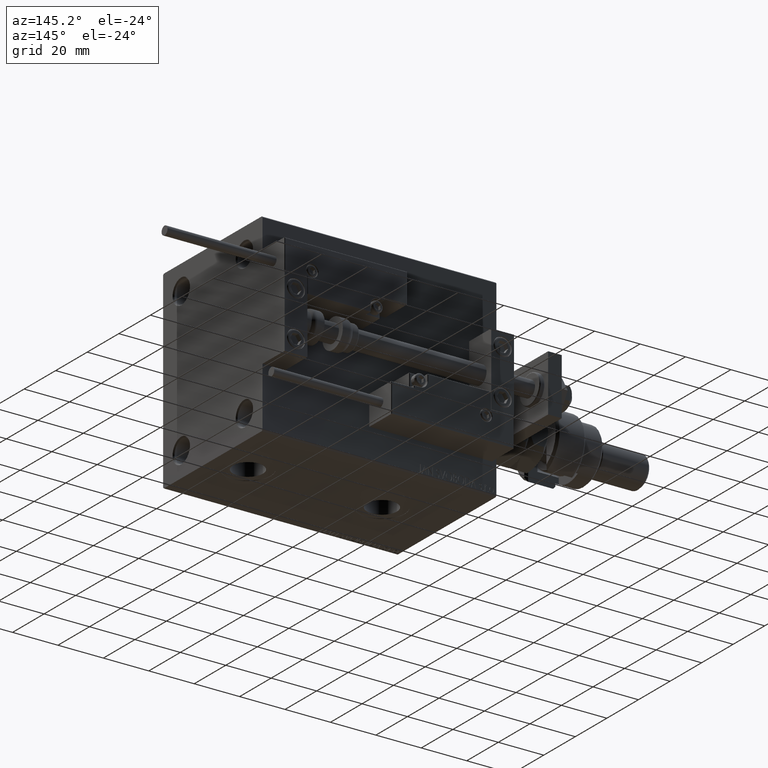
[diagram: clean part render]
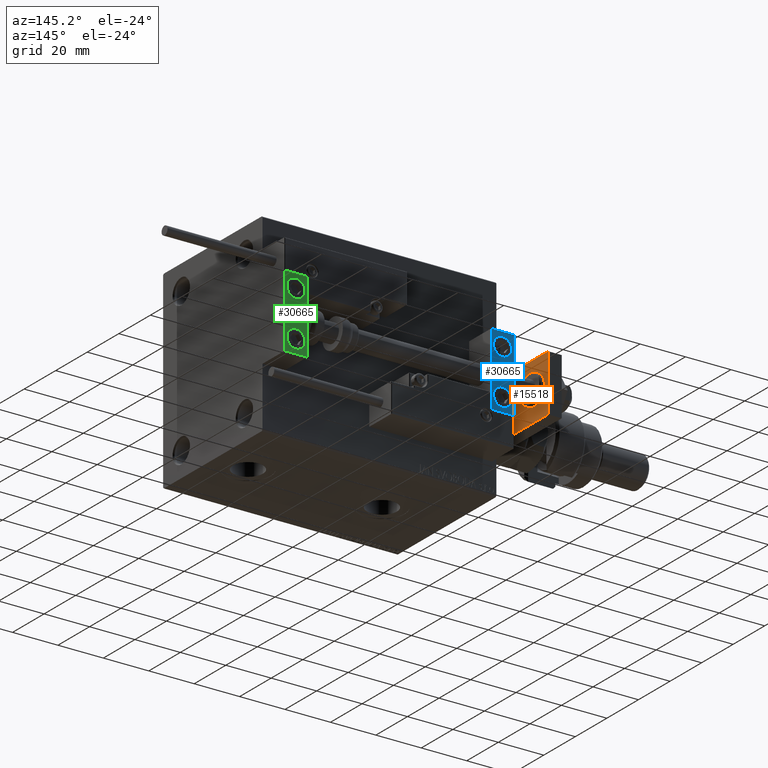
[diagram: same view with three faces highlighted in distinct colors, each labeled with its STEP entity id]
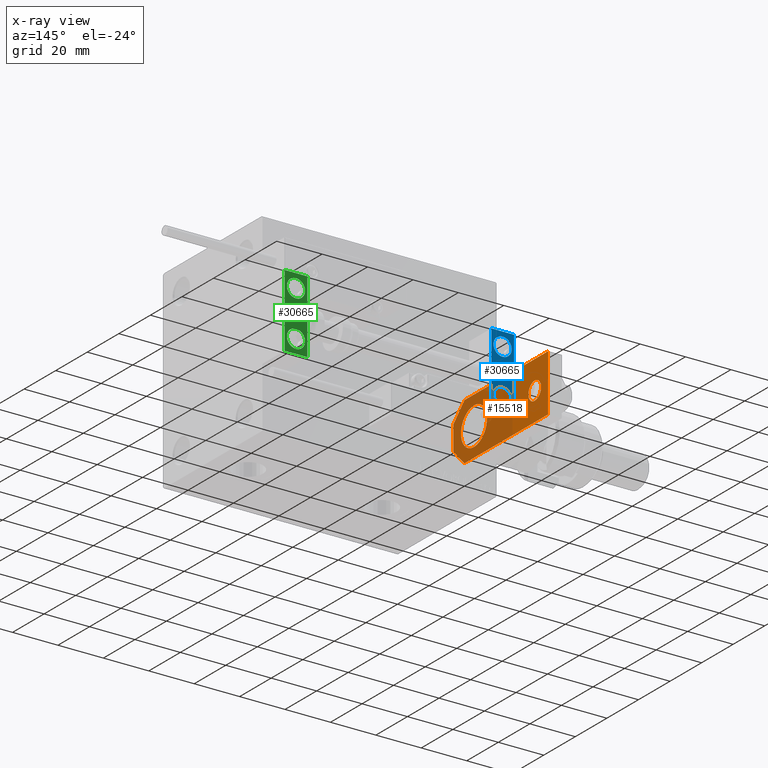
[diagram: x-ray of the same camera — body ghosted, the three highlighted faces saturated]
A machine part, auxiliary view with three faces highlighted in distinct colors.
The next image is the same camera in x-ray (body ghosted, the three faces saturated) — at least one of them is partly hidden behind the body in this view.
Their STEP definitions:

[orange] entity #15518 — the highlighted planar face has unit normal (-1, -0, 0).
#773 = LINE ( 'NONE', #17855, #52825 ) ;
#1029 = EDGE_CURVE ( 'NONE', #21975, #17880, #34974, .T. ) ;
#4438 = VERTEX_POINT ( 'NONE', #30233 ) ;
#4826 = CARTESIAN_POINT ( 'NONE',  ( 4.000000000000000888, 51.50000000000000000, 0.000000000000000000 ) ) ;
#5213 = LINE ( 'NONE', #14439, #53873 ) ;
#5479 = VERTEX_POINT ( 'NONE', #4826 ) ;
#5486 = DIRECTION ( 'NONE',  ( 1.000000000000000000, 0.000000000000000000, 0.000000000000000000 ) ) ;
#5606 = CARTESIAN_POINT ( 'NONE',  ( -5.500000000000010658, 4.814824860968089633E-32, 0.000000000000000000 ) ) ;
#5746 = EDGE_CURVE ( 'NONE', #5479, #14734, #54352, .T. ) ;
#5845 = CARTESIAN_POINT ( 'NONE',  ( 12.50000000000000355, 60.00000000000000000, 0.000000000000000000 ) ) ;
#7175 = CARTESIAN_POINT ( 'NONE',  ( -1.432611055310774642E-16, 51.50000000000000000, 0.000000000000000000 ) ) ;
#7712 = VERTEX_POINT ( 'NONE', #29276 ) ;
#10633 = LINE ( 'NONE', #5606, #36759 ) ;
#10963 = VERTEX_POINT ( 'NONE', #42256 ) ;
#12043 = DIRECTION ( 'NONE',  ( 1.000000000000000000, 0.000000000000000000, 0.000000000000000000 ) ) ;
#12645 = VERTEX_POINT ( 'NONE', #19685 ) ;
#13694 = CARTESIAN_POINT ( 'NONE',  ( 12.50000000000000355, 60.00000000000000000, 0.000000000000000000 ) ) ;
#13887 = EDGE_LOOP ( 'NONE', ( #41585, #16763 ) ) ;
#13919 = VECTOR ( 'NONE', #42817, 1000.000000000000000 ) ;
#14439 = CARTESIAN_POINT ( 'NONE',  ( -12.50000000000000355, 4.814824860968089633E-32, 0.000000000000000000 ) ) ;
#14734 = VERTEX_POINT ( 'NONE', #50849 ) ;
#15518 = ADVANCED_FACE ( 'NONE', ( #33870, #37788, #50658 ), #46193, .F. ) ;
#16469 = LINE ( 'NONE', #33829, #40222 ) ;
#16763 = ORIENTED_EDGE ( 'NONE', *, *, #48590, .T. ) ;
#17855 = CARTESIAN_POINT ( 'NONE',  ( 12.50000000000000355, 7.000000000000006217, 0.000000000000000000 ) ) ;
#17880 = VERTEX_POINT ( 'NONE', #24307 ) ;
#17935 = EDGE_CURVE ( 'NONE', #17880, #4438, #16469, .T. ) ;
#18314 = VECTOR ( 'NONE', #54628, 1000.000000000000000 ) ;
#18402 = DIRECTION ( 'NONE',  ( -0.7071067811865486830, -0.7071067811865464625, -0.000000000000000000 ) ) ;
#18432 = ORIENTED_EDGE ( 'NONE', *, *, #1029, .F. ) ;
#19350 = LINE ( 'NONE', #20174, #18314 ) ;
#19487 = EDGE_CURVE ( 'NONE', #7712, #4438, #10633, .T. ) ;
#19685 = CARTESIAN_POINT ( 'NONE',  ( -8.250000000000000000, 12.99999999999999822, 0.000000000000000000 ) ) ;
#20174 = CARTESIAN_POINT ( 'NONE',  ( 12.50000000000000355, 4.814824860968089633E-32, 0.000000000000000000 ) ) ;
#20419 = DIRECTION ( 'NONE',  ( 1.000000000000000000, 0.000000000000000000, 0.000000000000000000 ) ) ;
#20732 = EDGE_CURVE ( 'NONE', #12645, #10963, #38591, .T. ) ;
#20864 = DIRECTION ( 'NONE',  ( 0.000000000000000000, 0.000000000000000000, 1.000000000000000000 ) ) ;
#21975 = VERTEX_POINT ( 'NONE', #5845 ) ;
#23817 = CARTESIAN_POINT ( 'NONE',  ( -1.432611055310774642E-16, 51.50000000000000000, 0.000000000000000000 ) ) ;
#24307 = CARTESIAN_POINT ( 'NONE',  ( -12.49999999999999822, 60.00000000000000000, 0.000000000000000000 ) ) ;
#24352 = CARTESIAN_POINT ( 'NONE',  ( 0.000000000000000000, 0.000000000000000000, 0.000000000000000000 ) ) ;
#24443 = DIRECTION ( 'NONE',  ( 0.000000000000000000, 0.000000000000000000, 1.000000000000000000 ) ) ;
#24750 = VERTEX_POINT ( 'NONE', #51705 ) ;
#25111 = CARTESIAN_POINT ( 'NONE',  ( -9.629649721936179265E-32, 12.99999999999999822, 0.000000000000000000 ) ) ;
#25545 = CARTESIAN_POINT ( 'NONE',  ( -9.629649721936179265E-32, 12.99999999999999822, 0.000000000000000000 ) ) ;
#26246 = DIRECTION ( 'NONE',  ( -8.673617379884035472E-17, -1.000000000000000000, 0.000000000000000000 ) ) ;
#27862 = ORIENTED_EDGE ( 'NONE', *, *, #5746, .T. ) ;
#29276 = CARTESIAN_POINT ( 'NONE',  ( -5.500000000000010658, 4.814824860968089633E-32, 0.000000000000000000 ) ) ;
#29292 = ORIENTED_EDGE ( 'NONE', *, *, #31770, .F. ) ;
#29371 = ORIENTED_EDGE ( 'NONE', *, *, #31088, .T. ) ;
#29860 = DIRECTION ( 'NONE',  ( 0.000000000000000000, 0.000000000000000000, 1.000000000000000000 ) ) ;
#30233 = CARTESIAN_POINT ( 'NONE',  ( -12.50000000000000355, 7.000000000000013323, 0.000000000000000000 ) ) ;
#30520 = AXIS2_PLACEMENT_3D ( 'NONE', #25111, #29860, #38542 ) ;
#31088 = EDGE_CURVE ( 'NONE', #14734, #5479, #40693, .T. ) ;
#31231 = AXIS2_PLACEMENT_3D ( 'NONE', #24352, #50927, #20419 ) ;
#31770 = EDGE_CURVE ( 'NONE', #24750, #21975, #19350, .T. ) ;
#32569 = ORIENTED_EDGE ( 'NONE', *, *, #19487, .T. ) ;
#33829 = CARTESIAN_POINT ( 'NONE',  ( -12.49999999999999822, 60.00000000000000000, 0.000000000000000000 ) ) ;
#33870 = FACE_OUTER_BOUND ( 'NONE', #55258, .T. ) ;
#34974 = LINE ( 'NONE', #13694, #13919 ) ;
#35277 = EDGE_CURVE ( 'NONE', #24750, #36472, #773, .T. ) ;
#36472 = VERTEX_POINT ( 'NONE', #52548 ) ;
#36759 = VECTOR ( 'NONE', #39753, 1000.000000000000000 ) ;
#37473 = AXIS2_PLACEMENT_3D ( 'NONE', #23817, #40890, #12043 ) ;
#37788 = FACE_BOUND ( 'NONE', #41005, .T. ) ;
#38542 = DIRECTION ( 'NONE',  ( 1.000000000000000000, 0.000000000000000000, 0.000000000000000000 ) ) ;
#38591 = CIRCLE ( 'NONE', #30520, 8.250000000000000000 ) ;
#39753 = DIRECTION ( 'NONE',  ( -0.7071067811865465735, 0.7071067811865485719, -0.000000000000000000 ) ) ;
#40222 = VECTOR ( 'NONE', #26246, 1000.000000000000000 ) ;
#40693 = CIRCLE ( 'NONE', #42455, 4.000000000000000888 ) ;
#40890 = DIRECTION ( 'NONE',  ( 0.000000000000000000, 0.000000000000000000, 1.000000000000000000 ) ) ;
#41005 = EDGE_LOOP ( 'NONE', ( #29371, #27862 ) ) ;
#41120 = EDGE_CURVE ( 'NONE', #7712, #36472, #5213, .T. ) ;
#41585 = ORIENTED_EDGE ( 'NONE', *, *, #20732, .T. ) ;
#42256 = CARTESIAN_POINT ( 'NONE',  ( 8.250000000000000000, 13.00000000000000000, 0.000000000000000000 ) ) ;
#42455 = AXIS2_PLACEMENT_3D ( 'NONE', #7175, #20864, #46355 ) ;
#42550 = CIRCLE ( 'NONE', #46112, 8.250000000000000000 ) ;
#42619 = DIRECTION ( 'NONE',  ( 1.000000000000000000, 0.000000000000000000, 0.000000000000000000 ) ) ;
#42817 = DIRECTION ( 'NONE',  ( -1.000000000000000000, 0.000000000000000000, 0.000000000000000000 ) ) ;
#46039 = ORIENTED_EDGE ( 'NONE', *, *, #35277, .T. ) ;
#46112 = AXIS2_PLACEMENT_3D ( 'NONE', #25545, #24443, #42619 ) ;
#46193 = PLANE ( 'NONE',  #31231 ) ;
#46355 = DIRECTION ( 'NONE',  ( 1.000000000000000000, 0.000000000000000000, 0.000000000000000000 ) ) ;
#48590 = EDGE_CURVE ( 'NONE', #10963, #12645, #42550, .T. ) ;
#50658 = FACE_BOUND ( 'NONE', #13887, .T. ) ;
#50849 = CARTESIAN_POINT ( 'NONE',  ( -4.000000000000000888, 51.50000000000000000, 0.000000000000000000 ) ) ;
#50927 = DIRECTION ( 'NONE',  ( -0.000000000000000000, 0.000000000000000000, 1.000000000000000000 ) ) ;
#51705 = CARTESIAN_POINT ( 'NONE',  ( 12.50000000000000355, 7.000000000000006217, 0.000000000000000000 ) ) ;
#52548 = CARTESIAN_POINT ( 'NONE',  ( 5.499999999999976907, 4.814824860968089633E-32, 0.000000000000000000 ) ) ;
#52825 = VECTOR ( 'NONE', #18402, 999.9999999999998863 ) ;
#53678 = ORIENTED_EDGE ( 'NONE', *, *, #41120, .F. ) ;
#53873 = VECTOR ( 'NONE', #5486, 1000.000000000000000 ) ;
#54352 = CIRCLE ( 'NONE', #37473, 4.000000000000000888 ) ;
#54455 = ORIENTED_EDGE ( 'NONE', *, *, #17935, .F. ) ;
#54628 = DIRECTION ( 'NONE',  ( 0.000000000000000000, 1.000000000000000000, 0.000000000000000000 ) ) ;
#55258 = EDGE_LOOP ( 'NONE', ( #53678, #32569, #54455, #18432, #29292, #46039 ) ) ;

[blue] entity #30665 — the highlighted planar face has unit normal (-0, 1, 0).
#619 = CIRCLE ( 'NONE', #47142, 4.000000000000000000 ) ;
#1559 = DIRECTION ( 'NONE',  ( 0.000000000000000000, 1.000000000000000000, -6.065466699219605527E-17 ) ) ;
#2074 = EDGE_CURVE ( 'NONE', #19377, #24728, #49458, .T. ) ;
#3314 = DIRECTION ( 'NONE',  ( -0.000000000000000000, 1.000000000000000000, 0.000000000000000000 ) ) ;
#4492 = VERTEX_POINT ( 'NONE', #42559 ) ;
#4722 = VERTEX_POINT ( 'NONE', #55362 ) ;
#6579 = DIRECTION ( 'NONE',  ( 0.000000000000000000, 0.000000000000000000, -1.000000000000000000 ) ) ;
#7520 = CARTESIAN_POINT ( 'NONE',  ( 10.00000000000000000, 7.000000000000000000, 15.99999999999999289 ) ) ;
#10451 = CARTESIAN_POINT ( 'NONE',  ( 5.000000000000000888, 6.999999999999999112, -10.00000000000000178 ) ) ;
#10688 = VERTEX_POINT ( 'NONE', #37576 ) ;
#11100 = CARTESIAN_POINT ( 'NONE',  ( 0.000000000000000000, 7.000000000000000000, 15.99999999999999289 ) ) ;
#11277 = VECTOR ( 'NONE', #45808, 1000.000000000000000 ) ;
#12869 = CARTESIAN_POINT ( 'NONE',  ( 5.000000000000000888, 7.000000000000000888, 10.00000000000000178 ) ) ;
#13897 = DIRECTION ( 'NONE',  ( 0.000000000000000000, 0.000000000000000000, 1.000000000000000000 ) ) ;
#14165 = CARTESIAN_POINT ( 'NONE',  ( 0.000000000000000000, 7.000000000000000000, -16.00000000000000711 ) ) ;
#14973 = CARTESIAN_POINT ( 'NONE',  ( 10.00000000000000000, 7.000000000000000000, 15.99999999999999289 ) ) ;
#15294 = EDGE_LOOP ( 'NONE', ( #35469, #49014, #19390, #29400 ) ) ;
#15640 = FACE_BOUND ( 'NONE', #26622, .T. ) ;
#16001 = LINE ( 'NONE', #14973, #18879 ) ;
#16454 = CIRCLE ( 'NONE', #21839, 4.000000000000000888 ) ;
#16706 = EDGE_CURVE ( 'NONE', #4722, #51066, #35748, .T. ) ;
#18118 = VECTOR ( 'NONE', #45094, 1000.000000000000000 ) ;
#18879 = VECTOR ( 'NONE', #6579, 1000.000000000000000 ) ;
#19205 = EDGE_CURVE ( 'NONE', #10688, #53844, #16001, .T. ) ;
#19377 = VERTEX_POINT ( 'NONE', #43690 ) ;
#19390 = ORIENTED_EDGE ( 'NONE', *, *, #19205, .T. ) ;
#21320 = EDGE_CURVE ( 'NONE', #46050, #4492, #33281, .T. ) ;
#21839 = AXIS2_PLACEMENT_3D ( 'NONE', #39640, #1559, #13897 ) ;
#22222 = DIRECTION ( 'NONE',  ( 0.000000000000000000, 1.000000000000000000, -6.065466699219605527E-17 ) ) ;
#24728 = VERTEX_POINT ( 'NONE', #14165 ) ;
#25232 = ORIENTED_EDGE ( 'NONE', *, *, #54461, .T. ) ;
#26280 = EDGE_CURVE ( 'NONE', #10688, #19377, #52944, .T. ) ;
#26622 = EDGE_LOOP ( 'NONE', ( #38152, #52467 ) ) ;
#29027 = AXIS2_PLACEMENT_3D ( 'NONE', #7520, #3314, #29605 ) ;
#29333 = FACE_BOUND ( 'NONE', #54845, .T. ) ;
#29400 = ORIENTED_EDGE ( 'NONE', *, *, #47272, .T. ) ;
#29559 = EDGE_CURVE ( 'NONE', #4492, #46050, #16454, .T. ) ;
#29605 = DIRECTION ( 'NONE',  ( 0.000000000000000000, -0.000000000000000000, 1.000000000000000000 ) ) ;
#29941 = DIRECTION ( 'NONE',  ( 0.000000000000000000, 0.000000000000000000, 1.000000000000000000 ) ) ;
#30237 = CARTESIAN_POINT ( 'NONE',  ( 5.000000000000001776, 7.000000000000000888, 6.000000000000000888 ) ) ;
#30665 = ADVANCED_FACE ( 'NONE', ( #50888, #15640, #29333 ), #55107, .T. ) ;
#33281 = CIRCLE ( 'NONE', #42184, 4.000000000000000888 ) ;
#33537 = VECTOR ( 'NONE', #36146, 1000.000000000000000 ) ;
#34057 = DIRECTION ( 'NONE',  ( 0.000000000000000000, 0.000000000000000000, 1.000000000000000000 ) ) ;
#34715 = DIRECTION ( 'NONE',  ( 1.848892746611746419E-32, -1.000000000000000000, 6.616381192988677562E-17 ) ) ;
#34849 = AXIS2_PLACEMENT_3D ( 'NONE', #12869, #34715, #29941 ) ;
#35469 = ORIENTED_EDGE ( 'NONE', *, *, #2074, .F. ) ;
#35748 = CIRCLE ( 'NONE', #34849, 4.000000000000000000 ) ;
#36146 = DIRECTION ( 'NONE',  ( -1.000000000000000000, -0.000000000000000000, -0.000000000000000000 ) ) ;
#36419 = CARTESIAN_POINT ( 'NONE',  ( 10.00000000000000000, 7.000000000000000000, 15.99999999999999289 ) ) ;
#36420 = LINE ( 'NONE', #52661, #33537 ) ;
#37576 = CARTESIAN_POINT ( 'NONE',  ( 10.00000000000000000, 7.000000000000000000, 15.99999999999999289 ) ) ;
#38152 = ORIENTED_EDGE ( 'NONE', *, *, #21320, .F. ) ;
#38518 = DIRECTION ( 'NONE',  ( 1.848892746611746419E-32, -1.000000000000000000, 6.616381192988677562E-17 ) ) ;
#39141 = ORIENTED_EDGE ( 'NONE', *, *, #16706, .T. ) ;
#39298 = DIRECTION ( 'NONE',  ( 0.000000000000000000, 0.000000000000000000, 1.000000000000000000 ) ) ;
#39640 = CARTESIAN_POINT ( 'NONE',  ( 5.000000000000000888, 6.999999999999999112, -10.00000000000000178 ) ) ;
#42184 = AXIS2_PLACEMENT_3D ( 'NONE', #10451, #22222, #39298 ) ;
#42559 = CARTESIAN_POINT ( 'NONE',  ( 5.000000000000001776, 6.999999999999999112, -14.00000000000000178 ) ) ;
#43690 = CARTESIAN_POINT ( 'NONE',  ( 0.000000000000000000, 7.000000000000000000, 15.99999999999999289 ) ) ;
#45094 = DIRECTION ( 'NONE',  ( -1.000000000000000000, -0.000000000000000000, -0.000000000000000000 ) ) ;
#45149 = CARTESIAN_POINT ( 'NONE',  ( 5.000000000000000888, 6.999999999999999112, -6.000000000000000888 ) ) ;
#45808 = DIRECTION ( 'NONE',  ( 0.000000000000000000, 0.000000000000000000, -1.000000000000000000 ) ) ;
#46050 = VERTEX_POINT ( 'NONE', #45149 ) ;
#47142 = AXIS2_PLACEMENT_3D ( 'NONE', #55336, #38518, #34057 ) ;
#47272 = EDGE_CURVE ( 'NONE', #53844, #24728, #36420, .T. ) ;
#49014 = ORIENTED_EDGE ( 'NONE', *, *, #26280, .F. ) ;
#49132 = CARTESIAN_POINT ( 'NONE',  ( 10.00000000000000000, 7.000000000000000000, -16.00000000000000711 ) ) ;
#49458 = LINE ( 'NONE', #11100, #11277 ) ;
#50888 = FACE_OUTER_BOUND ( 'NONE', #15294, .T. ) ;
#51066 = VERTEX_POINT ( 'NONE', #30237 ) ;
#52467 = ORIENTED_EDGE ( 'NONE', *, *, #29559, .F. ) ;
#52661 = CARTESIAN_POINT ( 'NONE',  ( 10.00000000000000000, 7.000000000000000000, -16.00000000000000711 ) ) ;
#52944 = LINE ( 'NONE', #36419, #18118 ) ;
#53844 = VERTEX_POINT ( 'NONE', #49132 ) ;
#54461 = EDGE_CURVE ( 'NONE', #51066, #4722, #619, .T. ) ;
#54845 = EDGE_LOOP ( 'NONE', ( #39141, #25232 ) ) ;
#55107 = PLANE ( 'NONE',  #29027 ) ;
#55336 = CARTESIAN_POINT ( 'NONE',  ( 5.000000000000000888, 7.000000000000000888, 10.00000000000000178 ) ) ;
#55362 = CARTESIAN_POINT ( 'NONE',  ( 5.000000000000000888, 7.000000000000000888, 14.00000000000000178 ) ) ;

[green] entity #30665 — the highlighted planar face has unit normal (0, 1, 0).
#619 = CIRCLE ( 'NONE', #47142, 4.000000000000000000 ) ;
#1559 = DIRECTION ( 'NONE',  ( 0.000000000000000000, 1.000000000000000000, -6.065466699219605527E-17 ) ) ;
#2074 = EDGE_CURVE ( 'NONE', #19377, #24728, #49458, .T. ) ;
#3314 = DIRECTION ( 'NONE',  ( -0.000000000000000000, 1.000000000000000000, 0.000000000000000000 ) ) ;
#4492 = VERTEX_POINT ( 'NONE', #42559 ) ;
#4722 = VERTEX_POINT ( 'NONE', #55362 ) ;
#6579 = DIRECTION ( 'NONE',  ( 0.000000000000000000, 0.000000000000000000, -1.000000000000000000 ) ) ;
#7520 = CARTESIAN_POINT ( 'NONE',  ( 10.00000000000000000, 7.000000000000000000, 15.99999999999999289 ) ) ;
#10451 = CARTESIAN_POINT ( 'NONE',  ( 5.000000000000000888, 6.999999999999999112, -10.00000000000000178 ) ) ;
#10688 = VERTEX_POINT ( 'NONE', #37576 ) ;
#11100 = CARTESIAN_POINT ( 'NONE',  ( 0.000000000000000000, 7.000000000000000000, 15.99999999999999289 ) ) ;
#11277 = VECTOR ( 'NONE', #45808, 1000.000000000000000 ) ;
#12869 = CARTESIAN_POINT ( 'NONE',  ( 5.000000000000000888, 7.000000000000000888, 10.00000000000000178 ) ) ;
#13897 = DIRECTION ( 'NONE',  ( 0.000000000000000000, 0.000000000000000000, 1.000000000000000000 ) ) ;
#14165 = CARTESIAN_POINT ( 'NONE',  ( 0.000000000000000000, 7.000000000000000000, -16.00000000000000711 ) ) ;
#14973 = CARTESIAN_POINT ( 'NONE',  ( 10.00000000000000000, 7.000000000000000000, 15.99999999999999289 ) ) ;
#15294 = EDGE_LOOP ( 'NONE', ( #35469, #49014, #19390, #29400 ) ) ;
#15640 = FACE_BOUND ( 'NONE', #26622, .T. ) ;
#16001 = LINE ( 'NONE', #14973, #18879 ) ;
#16454 = CIRCLE ( 'NONE', #21839, 4.000000000000000888 ) ;
#16706 = EDGE_CURVE ( 'NONE', #4722, #51066, #35748, .T. ) ;
#18118 = VECTOR ( 'NONE', #45094, 1000.000000000000000 ) ;
#18879 = VECTOR ( 'NONE', #6579, 1000.000000000000000 ) ;
#19205 = EDGE_CURVE ( 'NONE', #10688, #53844, #16001, .T. ) ;
#19377 = VERTEX_POINT ( 'NONE', #43690 ) ;
#19390 = ORIENTED_EDGE ( 'NONE', *, *, #19205, .T. ) ;
#21320 = EDGE_CURVE ( 'NONE', #46050, #4492, #33281, .T. ) ;
#21839 = AXIS2_PLACEMENT_3D ( 'NONE', #39640, #1559, #13897 ) ;
#22222 = DIRECTION ( 'NONE',  ( 0.000000000000000000, 1.000000000000000000, -6.065466699219605527E-17 ) ) ;
#24728 = VERTEX_POINT ( 'NONE', #14165 ) ;
#25232 = ORIENTED_EDGE ( 'NONE', *, *, #54461, .T. ) ;
#26280 = EDGE_CURVE ( 'NONE', #10688, #19377, #52944, .T. ) ;
#26622 = EDGE_LOOP ( 'NONE', ( #38152, #52467 ) ) ;
#29027 = AXIS2_PLACEMENT_3D ( 'NONE', #7520, #3314, #29605 ) ;
#29333 = FACE_BOUND ( 'NONE', #54845, .T. ) ;
#29400 = ORIENTED_EDGE ( 'NONE', *, *, #47272, .T. ) ;
#29559 = EDGE_CURVE ( 'NONE', #4492, #46050, #16454, .T. ) ;
#29605 = DIRECTION ( 'NONE',  ( 0.000000000000000000, -0.000000000000000000, 1.000000000000000000 ) ) ;
#29941 = DIRECTION ( 'NONE',  ( 0.000000000000000000, 0.000000000000000000, 1.000000000000000000 ) ) ;
#30237 = CARTESIAN_POINT ( 'NONE',  ( 5.000000000000001776, 7.000000000000000888, 6.000000000000000888 ) ) ;
#30665 = ADVANCED_FACE ( 'NONE', ( #50888, #15640, #29333 ), #55107, .T. ) ;
#33281 = CIRCLE ( 'NONE', #42184, 4.000000000000000888 ) ;
#33537 = VECTOR ( 'NONE', #36146, 1000.000000000000000 ) ;
#34057 = DIRECTION ( 'NONE',  ( 0.000000000000000000, 0.000000000000000000, 1.000000000000000000 ) ) ;
#34715 = DIRECTION ( 'NONE',  ( 1.848892746611746419E-32, -1.000000000000000000, 6.616381192988677562E-17 ) ) ;
#34849 = AXIS2_PLACEMENT_3D ( 'NONE', #12869, #34715, #29941 ) ;
#35469 = ORIENTED_EDGE ( 'NONE', *, *, #2074, .F. ) ;
#35748 = CIRCLE ( 'NONE', #34849, 4.000000000000000000 ) ;
#36146 = DIRECTION ( 'NONE',  ( -1.000000000000000000, -0.000000000000000000, -0.000000000000000000 ) ) ;
#36419 = CARTESIAN_POINT ( 'NONE',  ( 10.00000000000000000, 7.000000000000000000, 15.99999999999999289 ) ) ;
#36420 = LINE ( 'NONE', #52661, #33537 ) ;
#37576 = CARTESIAN_POINT ( 'NONE',  ( 10.00000000000000000, 7.000000000000000000, 15.99999999999999289 ) ) ;
#38152 = ORIENTED_EDGE ( 'NONE', *, *, #21320, .F. ) ;
#38518 = DIRECTION ( 'NONE',  ( 1.848892746611746419E-32, -1.000000000000000000, 6.616381192988677562E-17 ) ) ;
#39141 = ORIENTED_EDGE ( 'NONE', *, *, #16706, .T. ) ;
#39298 = DIRECTION ( 'NONE',  ( 0.000000000000000000, 0.000000000000000000, 1.000000000000000000 ) ) ;
#39640 = CARTESIAN_POINT ( 'NONE',  ( 5.000000000000000888, 6.999999999999999112, -10.00000000000000178 ) ) ;
#42184 = AXIS2_PLACEMENT_3D ( 'NONE', #10451, #22222, #39298 ) ;
#42559 = CARTESIAN_POINT ( 'NONE',  ( 5.000000000000001776, 6.999999999999999112, -14.00000000000000178 ) ) ;
#43690 = CARTESIAN_POINT ( 'NONE',  ( 0.000000000000000000, 7.000000000000000000, 15.99999999999999289 ) ) ;
#45094 = DIRECTION ( 'NONE',  ( -1.000000000000000000, -0.000000000000000000, -0.000000000000000000 ) ) ;
#45149 = CARTESIAN_POINT ( 'NONE',  ( 5.000000000000000888, 6.999999999999999112, -6.000000000000000888 ) ) ;
#45808 = DIRECTION ( 'NONE',  ( 0.000000000000000000, 0.000000000000000000, -1.000000000000000000 ) ) ;
#46050 = VERTEX_POINT ( 'NONE', #45149 ) ;
#47142 = AXIS2_PLACEMENT_3D ( 'NONE', #55336, #38518, #34057 ) ;
#47272 = EDGE_CURVE ( 'NONE', #53844, #24728, #36420, .T. ) ;
#49014 = ORIENTED_EDGE ( 'NONE', *, *, #26280, .F. ) ;
#49132 = CARTESIAN_POINT ( 'NONE',  ( 10.00000000000000000, 7.000000000000000000, -16.00000000000000711 ) ) ;
#49458 = LINE ( 'NONE', #11100, #11277 ) ;
#50888 = FACE_OUTER_BOUND ( 'NONE', #15294, .T. ) ;
#51066 = VERTEX_POINT ( 'NONE', #30237 ) ;
#52467 = ORIENTED_EDGE ( 'NONE', *, *, #29559, .F. ) ;
#52661 = CARTESIAN_POINT ( 'NONE',  ( 10.00000000000000000, 7.000000000000000000, -16.00000000000000711 ) ) ;
#52944 = LINE ( 'NONE', #36419, #18118 ) ;
#53844 = VERTEX_POINT ( 'NONE', #49132 ) ;
#54461 = EDGE_CURVE ( 'NONE', #51066, #4722, #619, .T. ) ;
#54845 = EDGE_LOOP ( 'NONE', ( #39141, #25232 ) ) ;
#55107 = PLANE ( 'NONE',  #29027 ) ;
#55336 = CARTESIAN_POINT ( 'NONE',  ( 5.000000000000000888, 7.000000000000000888, 10.00000000000000178 ) ) ;
#55362 = CARTESIAN_POINT ( 'NONE',  ( 5.000000000000000888, 7.000000000000000888, 14.00000000000000178 ) ) ;